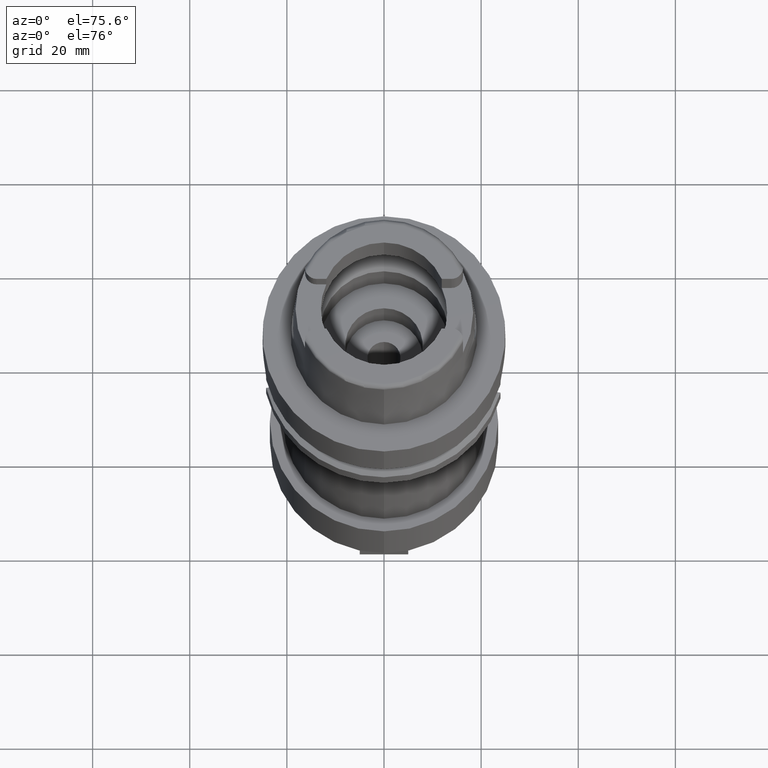
[diagram: clean part render]
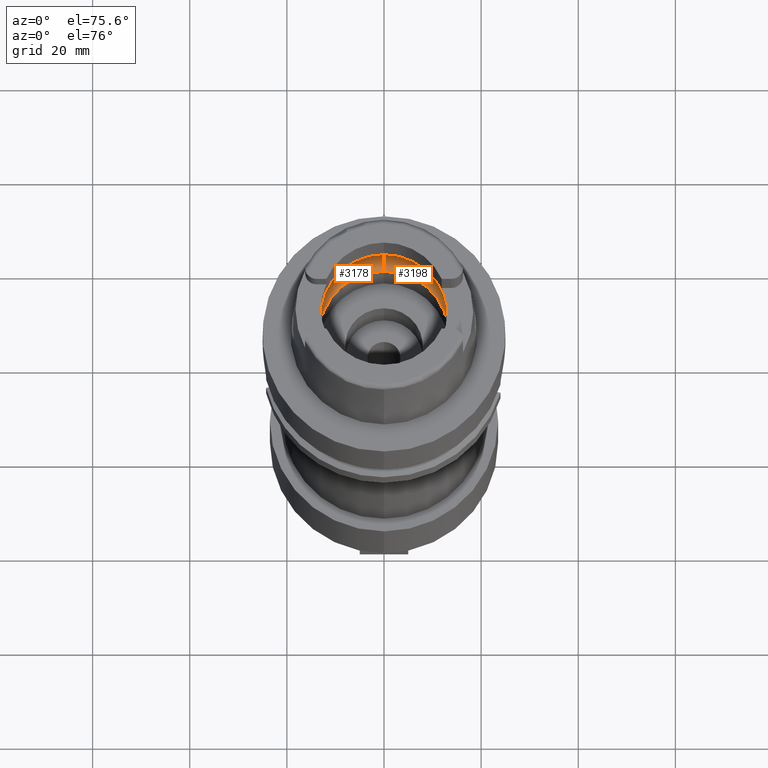
[diagram: same view with one multi-face feature highlighted, each face labeled with its STEP entity id]
A machine part, auxiliary view. The highlighted faces form ONE feature: a constant-radius fillet chain: 2 tangent blend faces with common blend radius 6 mm. The faces share edges in the B-rep.
Their STEP definitions:
[1] entity #3178 (Torus):
#560=CARTESIAN_POINT('',(-1.590436354886E1,-1.746774199933E0,5.060987926547E0));
#602=CARTESIAN_POINT('',(-1.590436354886E1,-1.746774199933E0,5.060987926547E0));
#603=CARTESIAN_POINT('',(-1.592267611280E1,-1.580038468239E0,4.941574957050E0));
#604=CARTESIAN_POINT('',(-1.594968384251E1,-1.220665334067E0,4.736060316230E0));
#605=CARTESIAN_POINT('',(-1.596977935446E1,-6.245964740959E-1,
4.543549839171E0));
#606=CARTESIAN_POINT('',(-1.597371681169E1,-2.084846034776E-1,4.5E0));
#607=CARTESIAN_POINT('',(-1.597371681169E1,0.E0,4.5E0));
#612=CARTESIAN_POINT('',(-1.597371681169E1,0.E0,4.5E0));
#613=CARTESIAN_POINT('',(-1.597371681169E1,2.084857350728E-1,4.5E0));
#614=CARTESIAN_POINT('',(-1.596977926471E1,6.245989062634E-1,4.543550685559E0));
#615=CARTESIAN_POINT('',(-1.594968403994E1,1.220660646988E0,4.736058520286E0));
#616=CARTESIAN_POINT('',(-1.592267630629E1,1.580036706527E0,4.941573695345E0));
#617=CARTESIAN_POINT('',(-1.590436354886E1,1.746774199933E0,5.060987926547E0));
#622=CARTESIAN_POINT('',(0.E0,0.E0,5.060987926547E0));
#623=DIRECTION('',(0.E0,0.E0,-1.E0));
#624=DIRECTION('',(-9.940227218040E-1,1.091733874958E-1,0.E0));
#625=AXIS2_PLACEMENT_3D('',#622,#623,#624);
#630=CARTESIAN_POINT('',(0.E0,0.E0,4.999999999995E-2));
#631=DIRECTION('',(0.E0,0.E0,1.E0));
#632=DIRECTION('',(0.E0,1.E0,0.E0));
#633=AXIS2_PLACEMENT_3D('',#630,#631,#632);
#638=CARTESIAN_POINT('',(0.E0,-1.E1,5.060987926547E0));
#639=DIRECTION('',(-1.E0,0.E0,0.E0));
#640=DIRECTION('',(0.E0,-5.5E-1,-8.351646544245E-1));
#641=AXIS2_PLACEMENT_3D('',#638,#639,#640);
#646=CARTESIAN_POINT('',(0.E0,0.E0,5.060987926547E0));
#647=DIRECTION('',(0.E0,0.E0,-1.E0));
#648=DIRECTION('',(0.E0,-1.E0,0.E0));
#649=AXIS2_PLACEMENT_3D('',#646,#647,#648);
#680=CARTESIAN_POINT('',(0.E0,1.E1,5.060987926547E0));
#681=DIRECTION('',(1.E0,0.E0,0.E0));
#682=DIRECTION('',(0.E0,5.5E-1,-8.351646544245E-1));
#683=AXIS2_PLACEMENT_3D('',#680,#681,#682);
#2508=VERTEX_POINT('',#560);
#2509=CARTESIAN_POINT('',(0.E0,-1.6E1,5.060987926547E0));
#2510=VERTEX_POINT('',#2509);
#2511=CARTESIAN_POINT('',(0.E0,1.6E1,5.060987926547E0));
#2512=VERTEX_POINT('',#2511);
#2513=CARTESIAN_POINT('',(-1.590436354886E1,1.746774199933E0,5.060987926547E0));
#2514=VERTEX_POINT('',#2513);
#2515=CARTESIAN_POINT('',(-1.597371681169E1,0.E0,4.5E0));
#2516=VERTEX_POINT('',#2515);
#2521=CARTESIAN_POINT('',(0.E0,1.33E1,4.999999999995E-2));
#2522=VERTEX_POINT('',#2521);
#2523=CARTESIAN_POINT('',(0.E0,-1.33E1,4.999999999995E-2));
#2524=VERTEX_POINT('',#2523);
#3161=CARTESIAN_POINT('',(0.E0,0.E0,5.060987926547E0));
#3162=DIRECTION('',(0.E0,0.E0,1.E0));
#3163=DIRECTION('',(0.E0,1.E0,0.E0));
#3164=AXIS2_PLACEMENT_3D('',#3161,#3162,#3163);
#3165=TOROIDAL_SURFACE('',#3164,1.E1,6.E0);
#3166=ORIENTED_EDGE('',*,*,#3142,.T.);
#3167=ORIENTED_EDGE('',*,*,#3153,.T.);
#3168=ORIENTED_EDGE('',*,*,#3124,.T.);
#3170=ORIENTED_EDGE('',*,*,#3169,.F.);
#3172=ORIENTED_EDGE('',*,*,#3171,.T.);
#3174=ORIENTED_EDGE('',*,*,#3173,.T.);
#3175=ORIENTED_EDGE('',*,*,#3117,.T.);
#3176=EDGE_LOOP('',(#3166,#3167,#3168,#3170,#3172,#3174,#3175));
#3177=FACE_OUTER_BOUND('',#3176,.F.);
#608=B_SPLINE_CURVE_WITH_KNOTS('',3,(#602,#603,#604,#605,#606,#607),
.UNSPECIFIED.,.F.,.F.,(4,1,1,4),(0.E0,3.333333333333E-1,6.666666666667E-1,1.E0),
.UNSPECIFIED.);
#618=B_SPLINE_CURVE_WITH_KNOTS('',3,(#612,#613,#614,#615,#616,#617),
.UNSPECIFIED.,.F.,.F.,(4,1,1,4),(0.E0,3.333333333333E-1,6.666666666667E-1,1.E0),
.UNSPECIFIED.);
#626=CIRCLE('',#625,1.6E1);
#634=CIRCLE('',#633,1.33E1);
#642=CIRCLE('',#641,6.E0);
#650=CIRCLE('',#649,1.6E1);
#684=CIRCLE('',#683,6.E0);
#3117=EDGE_CURVE('',#2510,#2508,#650,.T.);
#3124=EDGE_CURVE('',#2514,#2512,#626,.T.);
#3142=EDGE_CURVE('',#2508,#2516,#608,.T.);
#3153=EDGE_CURVE('',#2516,#2514,#618,.T.);
#3169=EDGE_CURVE('',#2522,#2512,#684,.T.);
#3171=EDGE_CURVE('',#2522,#2524,#634,.T.);
#3173=EDGE_CURVE('',#2524,#2510,#642,.T.);
#3178=ADVANCED_FACE('',(#3177),#3165,.F.);
[2] entity #3198 (Torus):
#638=CARTESIAN_POINT('',(0.E0,-1.E1,5.060987926547E0));
#639=DIRECTION('',(-1.E0,0.E0,0.E0));
#640=DIRECTION('',(0.E0,-5.5E-1,-8.351646544245E-1));
#641=AXIS2_PLACEMENT_3D('',#638,#639,#640);
#654=CARTESIAN_POINT('',(1.597371681169E1,0.E0,4.5E0));
#655=CARTESIAN_POINT('',(1.597371681169E1,-2.084869154195E-1,4.5E0));
#656=CARTESIAN_POINT('',(1.596977927161E1,-6.246018505122E-1,4.543550774118E0));
#657=CARTESIAN_POINT('',(1.594968354006E1,-1.220670860294E0,4.736062917634E0));
#658=CARTESIAN_POINT('',(1.592267588164E1,-1.580040572955E0,4.941576464407E0));
#659=CARTESIAN_POINT('',(1.590436354886E1,-1.746774199933E0,5.060987926547E0));
#664=CARTESIAN_POINT('',(0.E0,0.E0,5.060987926547E0));
#665=DIRECTION('',(0.E0,0.E0,-1.E0));
#666=DIRECTION('',(9.940227218040E-1,-1.091733874958E-1,0.E0));
#667=AXIS2_PLACEMENT_3D('',#664,#665,#666);
#672=CARTESIAN_POINT('',(0.E0,0.E0,4.999999999995E-2));
#673=DIRECTION('',(0.E0,0.E0,1.E0));
#674=DIRECTION('',(0.E0,-1.E0,0.E0));
#675=AXIS2_PLACEMENT_3D('',#672,#673,#674);
#680=CARTESIAN_POINT('',(0.E0,1.E1,5.060987926547E0));
#681=DIRECTION('',(1.E0,0.E0,0.E0));
#682=DIRECTION('',(0.E0,5.5E-1,-8.351646544245E-1));
#683=AXIS2_PLACEMENT_3D('',#680,#681,#682);
#688=CARTESIAN_POINT('',(0.E0,0.E0,5.060987926547E0));
#689=DIRECTION('',(0.E0,0.E0,-1.E0));
#690=DIRECTION('',(0.E0,1.E0,0.E0));
#691=AXIS2_PLACEMENT_3D('',#688,#689,#690);
#696=CARTESIAN_POINT('',(1.590436354886E1,1.746774199933E0,5.060987926547E0));
#697=CARTESIAN_POINT('',(1.592267653660E1,1.580034609521E0,4.941572193509E0));
#698=CARTESIAN_POINT('',(1.594968434089E1,1.220655140583E0,4.736055930978E0));
#699=CARTESIAN_POINT('',(1.596977934620E1,6.245935958384E-1,4.543549764920E0));
#700=CARTESIAN_POINT('',(1.597371681169E1,2.084834520804E-1,4.5E0));
#701=CARTESIAN_POINT('',(1.597371681169E1,0.E0,4.5E0));
#713=CARTESIAN_POINT('',(1.590436354886E1,-1.746774199933E0,5.060987926547E0));
#740=CARTESIAN_POINT('',(1.590436354886E1,1.746774199933E0,5.060987926547E0));
#2509=CARTESIAN_POINT('',(0.E0,-1.6E1,5.060987926547E0));
#2510=VERTEX_POINT('',#2509);
#2511=CARTESIAN_POINT('',(0.E0,1.6E1,5.060987926547E0));
#2512=VERTEX_POINT('',#2511);
#2517=VERTEX_POINT('',#713);
#2519=VERTEX_POINT('',#654);
#2520=VERTEX_POINT('',#740);
#2521=CARTESIAN_POINT('',(0.E0,1.33E1,4.999999999995E-2));
#2522=VERTEX_POINT('',#2521);
#2523=CARTESIAN_POINT('',(0.E0,-1.33E1,4.999999999995E-2));
#2524=VERTEX_POINT('',#2523);
#3179=CARTESIAN_POINT('',(0.E0,0.E0,5.060987926547E0));
#3180=DIRECTION('',(0.E0,0.E0,1.E0));
#3181=DIRECTION('',(0.E0,1.E0,0.E0));
#3182=AXIS2_PLACEMENT_3D('',#3179,#3180,#3181);
#3183=TOROIDAL_SURFACE('',#3182,1.E1,6.E0);
#3185=ORIENTED_EDGE('',*,*,#3184,.T.);
#3187=ORIENTED_EDGE('',*,*,#3186,.T.);
#3188=ORIENTED_EDGE('',*,*,#3173,.F.);
#3190=ORIENTED_EDGE('',*,*,#3189,.T.);
#3191=ORIENTED_EDGE('',*,*,#3169,.T.);
#3193=ORIENTED_EDGE('',*,*,#3192,.T.);
#3195=ORIENTED_EDGE('',*,*,#3194,.T.);
#3196=EDGE_LOOP('',(#3185,#3187,#3188,#3190,#3191,#3193,#3195));
#3197=FACE_OUTER_BOUND('',#3196,.F.);
#642=CIRCLE('',#641,6.E0);
#660=B_SPLINE_CURVE_WITH_KNOTS('',3,(#654,#655,#656,#657,#658,#659),
.UNSPECIFIED.,.F.,.F.,(4,1,1,4),(0.E0,3.333333333333E-1,6.666666666667E-1,1.E0),
.UNSPECIFIED.);
#668=CIRCLE('',#667,1.6E1);
#676=CIRCLE('',#675,1.33E1);
#684=CIRCLE('',#683,6.E0);
#692=CIRCLE('',#691,1.6E1);
#702=B_SPLINE_CURVE_WITH_KNOTS('',3,(#696,#697,#698,#699,#700,#701),
.UNSPECIFIED.,.F.,.F.,(4,1,1,4),(0.E0,3.333333333333E-1,6.666666666667E-1,1.E0),
.UNSPECIFIED.);
#3169=EDGE_CURVE('',#2522,#2512,#684,.T.);
#3173=EDGE_CURVE('',#2524,#2510,#642,.T.);
#3184=EDGE_CURVE('',#2519,#2517,#660,.T.);
#3186=EDGE_CURVE('',#2517,#2510,#668,.T.);
#3189=EDGE_CURVE('',#2524,#2522,#676,.T.);
#3192=EDGE_CURVE('',#2512,#2520,#692,.T.);
#3194=EDGE_CURVE('',#2520,#2519,#702,.T.);
#3198=ADVANCED_FACE('',(#3197),#3183,.F.);